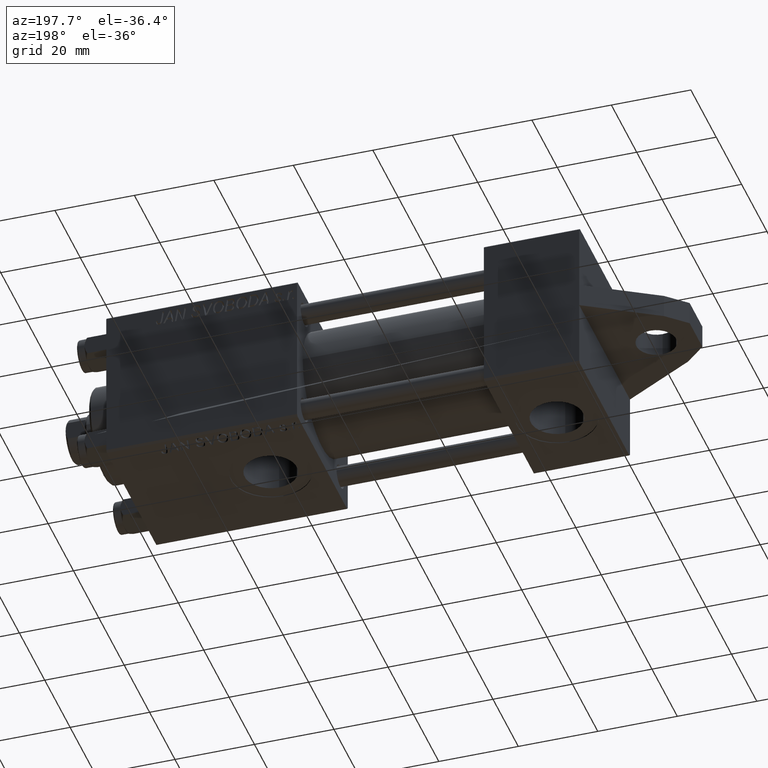
[diagram: clean part render]
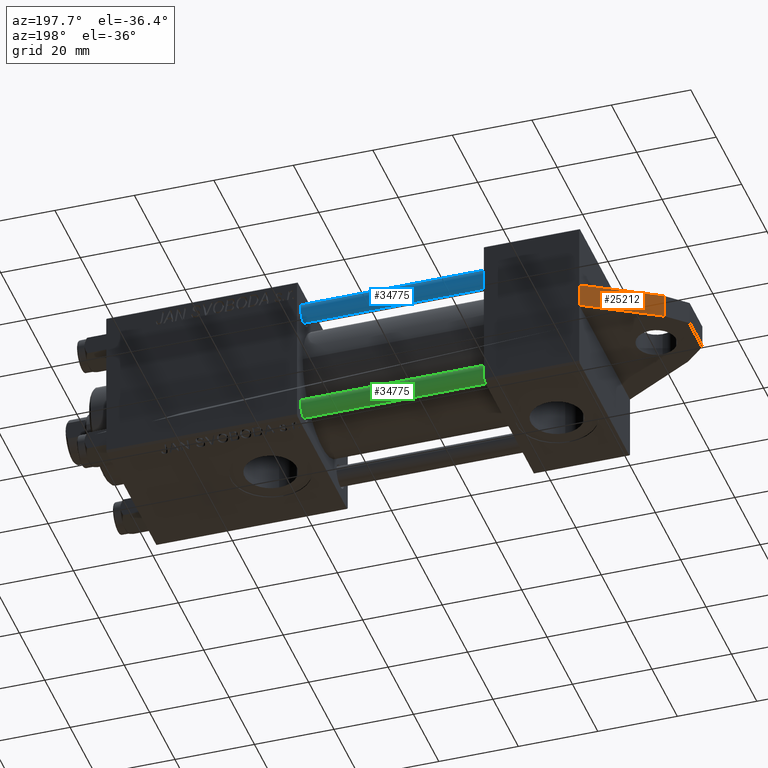
[diagram: same view with three faces highlighted in distinct colors, each labeled with its STEP entity id]
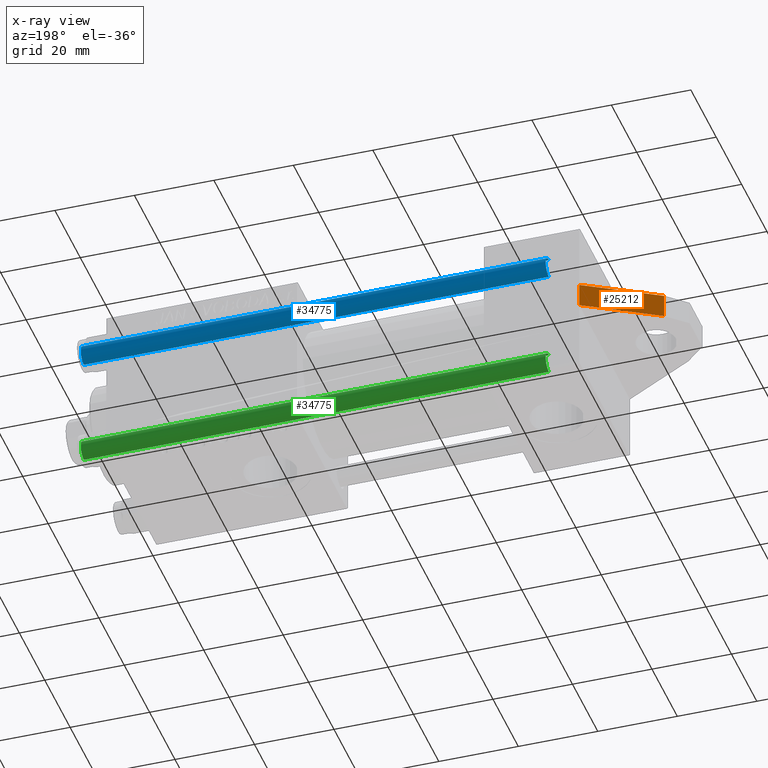
[diagram: x-ray of the same camera — body ghosted, the three highlighted faces saturated]
A machine part, auxiliary view with three faces highlighted in distinct colors.
The next image is the same camera in x-ray (body ghosted, the three faces saturated) — at least one of them is partly hidden behind the body in this view.
Their STEP definitions:

[orange] entity #25212 — the highlighted planar face has unit normal (-0.5, 0.866, -0).
#979 = VERTEX_POINT ( 'NONE', #19397 ) ;
#2125 = VECTOR ( 'NONE', #30857, 1000.000000000000227 ) ;
#2373 = CARTESIAN_POINT ( 'NONE',  ( 0.000000000000000000, -2.999999999999999112, -20.00000000000000355 ) ) ;
#2900 = VERTEX_POINT ( 'NONE', #21708 ) ;
#3826 = ORIENTED_EDGE ( 'NONE', *, *, #27748, .F. ) ;
#4736 = EDGE_CURVE ( 'NONE', #7432, #979, #45231, .T. ) ;
#5180 = CARTESIAN_POINT ( 'NONE',  ( -17.99999999999996803, -3.000000000000000000, -9.607695154586634700 ) ) ;
#7136 = EDGE_CURVE ( 'NONE', #7432, #10785, #21285, .T. ) ;
#7432 = VERTEX_POINT ( 'NONE', #2373 ) ;
#10394 = ORIENTED_EDGE ( 'NONE', *, *, #7136, .T. ) ;
#10785 = VERTEX_POINT ( 'NONE', #32775 ) ;
#10836 = DIRECTION ( 'NONE',  ( -0.8660254037844361541, -0.000000000000000000, 0.5000000000000043299 ) ) ;
#10975 = VECTOR ( 'NONE', #14054, 1000.000000000000000 ) ;
#13369 = CARTESIAN_POINT ( 'NONE',  ( -17.99999999999996803, -3.000000000000000000, -9.607695154586634700 ) ) ;
#14054 = DIRECTION ( 'NONE',  ( 0.000000000000000000, 1.000000000000000000, 0.000000000000000000 ) ) ;
#15179 = DIRECTION ( 'NONE',  ( 0.000000000000000000, 1.000000000000000000, 0.000000000000000000 ) ) ;
#19397 = CARTESIAN_POINT ( 'NONE',  ( 0.000000000000000000, 3.000000000000000000, -20.00000000000000000 ) ) ;
#20805 = DIRECTION ( 'NONE',  ( -0.5000000000000043299, 0.000000000000000000, -0.8660254037844361541 ) ) ;
#21285 = LINE ( 'NONE', #35049, #2125 ) ;
#21708 = CARTESIAN_POINT ( 'NONE',  ( -17.99999999999996803, 3.000000000000000000, -9.607695154586634700 ) ) ;
#23577 = EDGE_CURVE ( 'NONE', #10785, #2900, #32644, .T. ) ;
#25212 = ADVANCED_FACE ( 'NONE', ( #45234 ), #34776, .T. ) ;
#25497 = EDGE_LOOP ( 'NONE', ( #3826, #27800, #10394, #33291 ) ) ;
#27748 = EDGE_CURVE ( 'NONE', #979, #2900, #32879, .T. ) ;
#27800 = ORIENTED_EDGE ( 'NONE', *, *, #4736, .F. ) ;
#30857 = DIRECTION ( 'NONE',  ( -0.8660254037844361541, -0.000000000000000000, 0.5000000000000043299 ) ) ;
#31861 = VECTOR ( 'NONE', #10836, 1000.000000000000227 ) ;
#32644 = LINE ( 'NONE', #5180, #42113 ) ;
#32775 = CARTESIAN_POINT ( 'NONE',  ( -17.99999999999996803, -3.000000000000000000, -9.607695154586634700 ) ) ;
#32879 = LINE ( 'NONE', #33101, #31861 ) ;
#33101 = CARTESIAN_POINT ( 'NONE',  ( -17.99999999999996803, 3.000000000000000000, -9.607695154586634700 ) ) ;
#33291 = ORIENTED_EDGE ( 'NONE', *, *, #23577, .T. ) ;
#34776 = PLANE ( 'NONE',  #45154 ) ;
#35049 = CARTESIAN_POINT ( 'NONE',  ( -17.99999999999996803, -3.000000000000000000, -9.607695154586634700 ) ) ;
#41758 = DIRECTION ( 'NONE',  ( -0.8660254037844361541, 0.000000000000000000, 0.5000000000000043299 ) ) ;
#42113 = VECTOR ( 'NONE', #15179, 1000.000000000000000 ) ;
#42208 = CARTESIAN_POINT ( 'NONE',  ( 0.000000000000000000, -3.000000000000000000, -20.00000000000000000 ) ) ;
#45154 = AXIS2_PLACEMENT_3D ( 'NONE', #13369, #20805, #41758 ) ;
#45231 = LINE ( 'NONE', #42208, #10975 ) ;
#45234 = FACE_OUTER_BOUND ( 'NONE', #25497, .T. ) ;

[blue] entity #34775 — the highlighted cylindrical surface (edge-blend (fillet) strip) has radius 2.5 mm, axis along (-1, 0, -0).
#2201 = VECTOR ( 'NONE', #32106, 1000.000000000000000 ) ;
#4246 = AXIS2_PLACEMENT_3D ( 'NONE', #18621, #32362, #14672 ) ;
#5818 = CARTESIAN_POINT ( 'NONE',  ( 0.000000000000000000, 0.000000000000000000, 118.0000000000000000 ) ) ;
#6292 = DIRECTION ( 'NONE',  ( -0.000000000000000000, -0.000000000000000000, -1.000000000000000000 ) ) ;
#7939 = VERTEX_POINT ( 'NONE', #43683 ) ;
#8189 = AXIS2_PLACEMENT_3D ( 'NONE', #9945, #35088, #20878 ) ;
#9530 = FACE_OUTER_BOUND ( 'NONE', #27377, .T. ) ;
#9945 = CARTESIAN_POINT ( 'NONE',  ( 0.000000000000000000, 0.000000000000000000, 117.5000000000000142 ) ) ;
#14573 = CARTESIAN_POINT ( 'NONE',  ( -2.500000000000000000, 0.000000000000000000, 0.4999999999999726885 ) ) ;
#14672 = DIRECTION ( 'NONE',  ( 1.000000000000000000, 0.000000000000000000, 0.000000000000000000 ) ) ;
#14976 = EDGE_CURVE ( 'NONE', #39534, #7939, #18570, .T. ) ;
#18570 = CIRCLE ( 'NONE', #8189, 2.500000000000000000 ) ;
#18621 = CARTESIAN_POINT ( 'NONE',  ( 0.000000000000000000, 0.000000000000000000, 0.4999999999999726885 ) ) ;
#20314 = EDGE_CURVE ( 'NONE', #42792, #37665, #22811, .T. ) ;
#20878 = DIRECTION ( 'NONE',  ( 1.000000000000000000, 0.000000000000000000, 0.000000000000000000 ) ) ;
#21476 = VECTOR ( 'NONE', #6292, 1000.000000000000000 ) ;
#22811 = CIRCLE ( 'NONE', #4246, 2.500000000000000000 ) ;
#23848 = CARTESIAN_POINT ( 'NONE',  ( 2.500000000000000000, 3.061616997868383141E-16, 0.4999999999999726885 ) ) ;
#27377 = EDGE_LOOP ( 'NONE', ( #45765, #37059, #33934, #36075 ) ) ;
#27698 = CARTESIAN_POINT ( 'NONE',  ( 2.500000000000000000, 3.061616997868383141E-16, 118.0000000000000000 ) ) ;
#28522 = EDGE_CURVE ( 'NONE', #39534, #37665, #31640, .T. ) ;
#28583 = EDGE_CURVE ( 'NONE', #7939, #42792, #38855, .T. ) ;
#30713 = DIRECTION ( 'NONE',  ( -1.000000000000000000, 0.000000000000000000, 0.000000000000000000 ) ) ;
#31640 = LINE ( 'NONE', #35137, #21476 ) ;
#32106 = DIRECTION ( 'NONE',  ( -0.000000000000000000, -0.000000000000000000, -1.000000000000000000 ) ) ;
#32362 = DIRECTION ( 'NONE',  ( -0.000000000000000000, -0.000000000000000000, 1.000000000000000000 ) ) ;
#33934 = ORIENTED_EDGE ( 'NONE', *, *, #20314, .T. ) ;
#34216 = DIRECTION ( 'NONE',  ( -0.000000000000000000, -0.000000000000000000, -1.000000000000000000 ) ) ;
#34318 = AXIS2_PLACEMENT_3D ( 'NONE', #5818, #34216, #30713 ) ;
#34775 = ADVANCED_FACE ( 'NONE', ( #9530 ), #35126, .T. ) ;
#35088 = DIRECTION ( 'NONE',  ( 0.000000000000000000, 0.000000000000000000, -1.000000000000000000 ) ) ;
#35126 = CYLINDRICAL_SURFACE ( 'NONE', #34318, 2.500000000000000000 ) ;
#35137 = CARTESIAN_POINT ( 'NONE',  ( -2.500000000000000000, 0.000000000000000000, 118.0000000000000000 ) ) ;
#36075 = ORIENTED_EDGE ( 'NONE', *, *, #28522, .F. ) ;
#37059 = ORIENTED_EDGE ( 'NONE', *, *, #28583, .T. ) ;
#37665 = VERTEX_POINT ( 'NONE', #14573 ) ;
#38846 = CARTESIAN_POINT ( 'NONE',  ( -2.500000000000000000, 0.000000000000000000, 117.5000000000000142 ) ) ;
#38855 = LINE ( 'NONE', #27698, #2201 ) ;
#39534 = VERTEX_POINT ( 'NONE', #38846 ) ;
#42792 = VERTEX_POINT ( 'NONE', #23848 ) ;
#43683 = CARTESIAN_POINT ( 'NONE',  ( 2.500000000000000000, 3.061616997868383141E-16, 117.5000000000000142 ) ) ;
#45765 = ORIENTED_EDGE ( 'NONE', *, *, #14976, .T. ) ;

[green] entity #34775 — the highlighted cylindrical surface (edge-blend (fillet) strip) has radius 2.5 mm, axis along (1, -0, -0).
#2201 = VECTOR ( 'NONE', #32106, 1000.000000000000000 ) ;
#4246 = AXIS2_PLACEMENT_3D ( 'NONE', #18621, #32362, #14672 ) ;
#5818 = CARTESIAN_POINT ( 'NONE',  ( 0.000000000000000000, 0.000000000000000000, 118.0000000000000000 ) ) ;
#6292 = DIRECTION ( 'NONE',  ( -0.000000000000000000, -0.000000000000000000, -1.000000000000000000 ) ) ;
#7939 = VERTEX_POINT ( 'NONE', #43683 ) ;
#8189 = AXIS2_PLACEMENT_3D ( 'NONE', #9945, #35088, #20878 ) ;
#9530 = FACE_OUTER_BOUND ( 'NONE', #27377, .T. ) ;
#9945 = CARTESIAN_POINT ( 'NONE',  ( 0.000000000000000000, 0.000000000000000000, 117.5000000000000142 ) ) ;
#14573 = CARTESIAN_POINT ( 'NONE',  ( -2.500000000000000000, 0.000000000000000000, 0.4999999999999726885 ) ) ;
#14672 = DIRECTION ( 'NONE',  ( 1.000000000000000000, 0.000000000000000000, 0.000000000000000000 ) ) ;
#14976 = EDGE_CURVE ( 'NONE', #39534, #7939, #18570, .T. ) ;
#18570 = CIRCLE ( 'NONE', #8189, 2.500000000000000000 ) ;
#18621 = CARTESIAN_POINT ( 'NONE',  ( 0.000000000000000000, 0.000000000000000000, 0.4999999999999726885 ) ) ;
#20314 = EDGE_CURVE ( 'NONE', #42792, #37665, #22811, .T. ) ;
#20878 = DIRECTION ( 'NONE',  ( 1.000000000000000000, 0.000000000000000000, 0.000000000000000000 ) ) ;
#21476 = VECTOR ( 'NONE', #6292, 1000.000000000000000 ) ;
#22811 = CIRCLE ( 'NONE', #4246, 2.500000000000000000 ) ;
#23848 = CARTESIAN_POINT ( 'NONE',  ( 2.500000000000000000, 3.061616997868383141E-16, 0.4999999999999726885 ) ) ;
#27377 = EDGE_LOOP ( 'NONE', ( #45765, #37059, #33934, #36075 ) ) ;
#27698 = CARTESIAN_POINT ( 'NONE',  ( 2.500000000000000000, 3.061616997868383141E-16, 118.0000000000000000 ) ) ;
#28522 = EDGE_CURVE ( 'NONE', #39534, #37665, #31640, .T. ) ;
#28583 = EDGE_CURVE ( 'NONE', #7939, #42792, #38855, .T. ) ;
#30713 = DIRECTION ( 'NONE',  ( -1.000000000000000000, 0.000000000000000000, 0.000000000000000000 ) ) ;
#31640 = LINE ( 'NONE', #35137, #21476 ) ;
#32106 = DIRECTION ( 'NONE',  ( -0.000000000000000000, -0.000000000000000000, -1.000000000000000000 ) ) ;
#32362 = DIRECTION ( 'NONE',  ( -0.000000000000000000, -0.000000000000000000, 1.000000000000000000 ) ) ;
#33934 = ORIENTED_EDGE ( 'NONE', *, *, #20314, .T. ) ;
#34216 = DIRECTION ( 'NONE',  ( -0.000000000000000000, -0.000000000000000000, -1.000000000000000000 ) ) ;
#34318 = AXIS2_PLACEMENT_3D ( 'NONE', #5818, #34216, #30713 ) ;
#34775 = ADVANCED_FACE ( 'NONE', ( #9530 ), #35126, .T. ) ;
#35088 = DIRECTION ( 'NONE',  ( 0.000000000000000000, 0.000000000000000000, -1.000000000000000000 ) ) ;
#35126 = CYLINDRICAL_SURFACE ( 'NONE', #34318, 2.500000000000000000 ) ;
#35137 = CARTESIAN_POINT ( 'NONE',  ( -2.500000000000000000, 0.000000000000000000, 118.0000000000000000 ) ) ;
#36075 = ORIENTED_EDGE ( 'NONE', *, *, #28522, .F. ) ;
#37059 = ORIENTED_EDGE ( 'NONE', *, *, #28583, .T. ) ;
#37665 = VERTEX_POINT ( 'NONE', #14573 ) ;
#38846 = CARTESIAN_POINT ( 'NONE',  ( -2.500000000000000000, 0.000000000000000000, 117.5000000000000142 ) ) ;
#38855 = LINE ( 'NONE', #27698, #2201 ) ;
#39534 = VERTEX_POINT ( 'NONE', #38846 ) ;
#42792 = VERTEX_POINT ( 'NONE', #23848 ) ;
#43683 = CARTESIAN_POINT ( 'NONE',  ( 2.500000000000000000, 3.061616997868383141E-16, 117.5000000000000142 ) ) ;
#45765 = ORIENTED_EDGE ( 'NONE', *, *, #14976, .T. ) ;